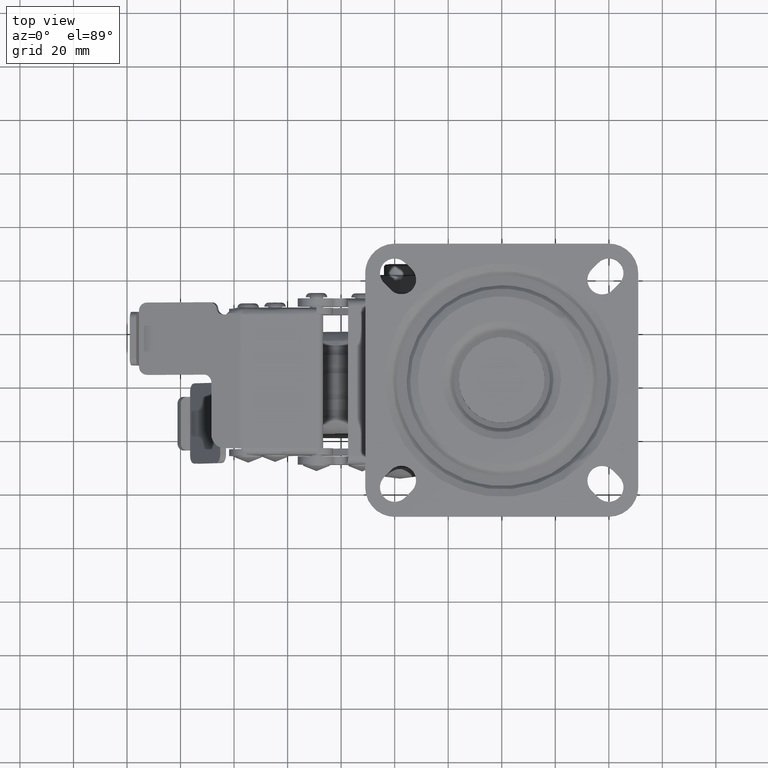
[diagram: clean part render]
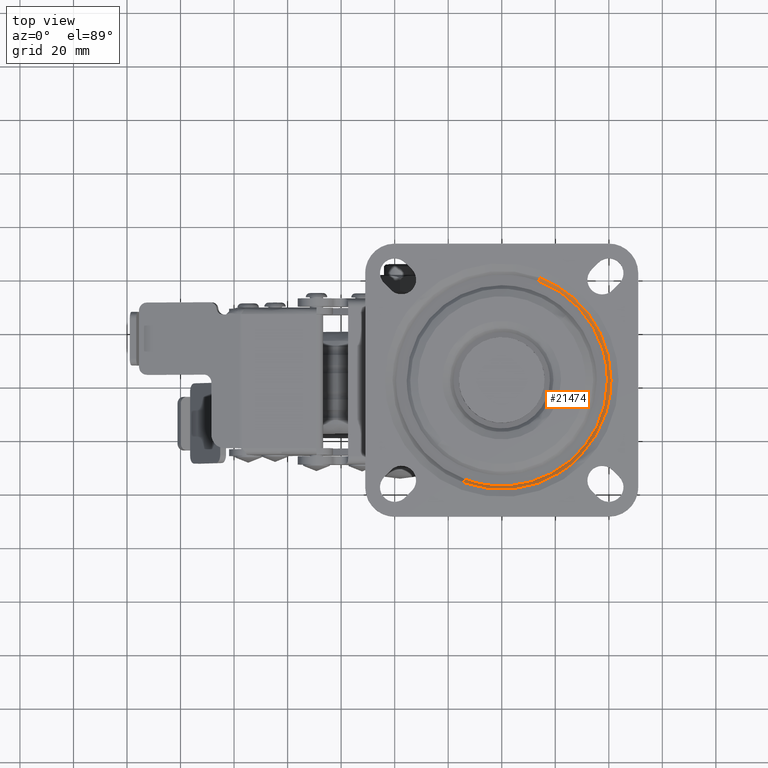
[diagram: same view with one face highlighted and labeled with its STEP entity id]
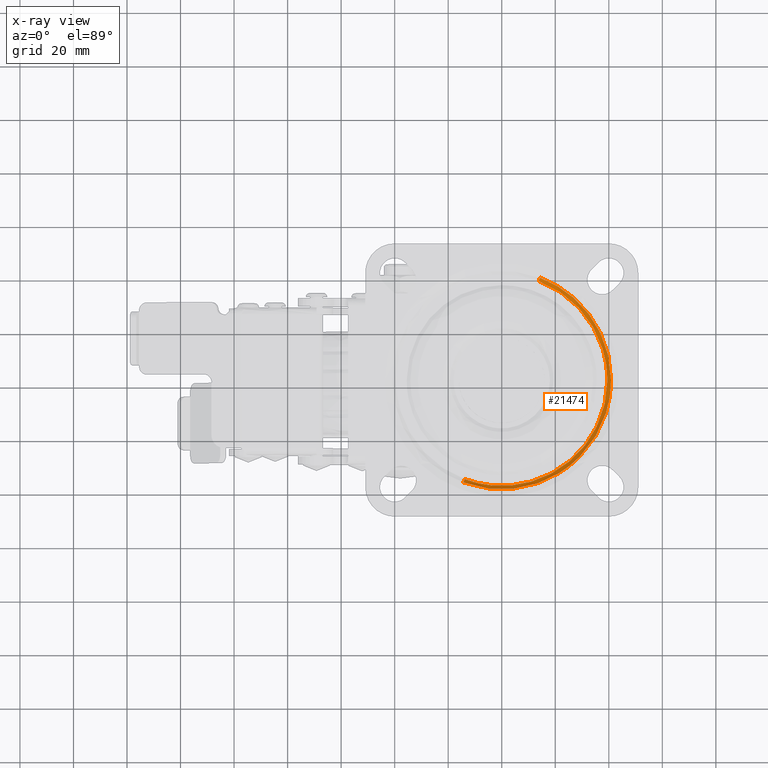
[diagram: x-ray of the same camera — body ghosted, the highlighted face saturated]
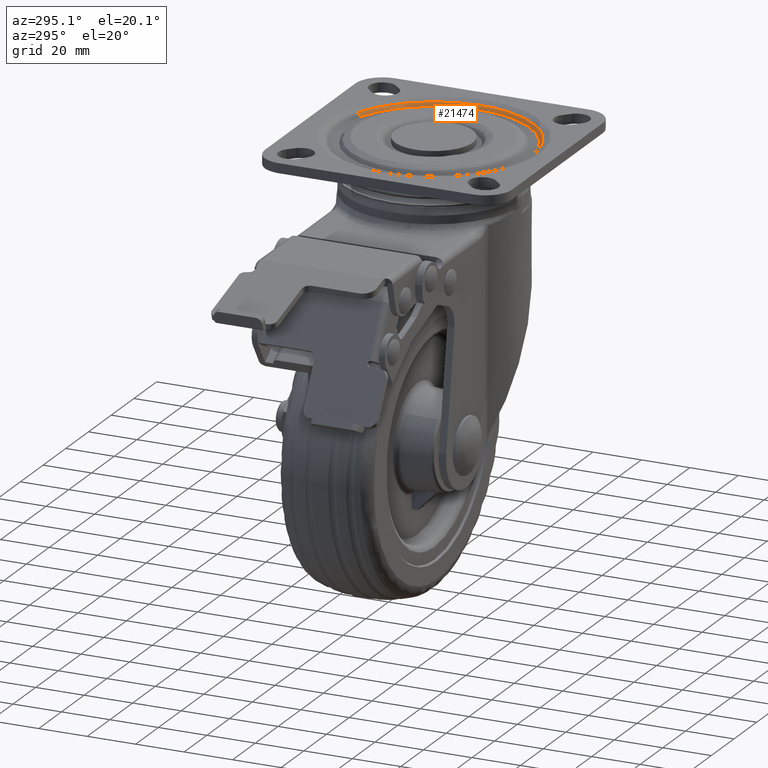
[diagram: same view with one face highlighted and labeled with its STEP entity id]
A machine part, top view. The second image highlights one B-rep face of the part: STEP entity #21474.
The next image is the same camera in x-ray: the body ghosted, the highlighted face saturated — about 0% of this face is hidden behind the body in this view.
A second angle (auxiliary view) of the same face is appended — the face is thin or edge-on in the first view.
In plain terms, the highlighted face is a freeform B-spline surface patch.
Its self-contained STEP definition (entity closure, byte-faithful):
#21090=CARTESIAN_POINT('',(-13.833191559753191,-36.998551475310563,-2.499999999999577));
#21091=VERTEX_POINT('',#21090);
#21107=CARTESIAN_POINT('',(39.500000000000000,0.0,-2.500000000000000));
#21108=VERTEX_POINT('',#21107);
#21109=CARTESIAN_POINT('',(39.500000000000000,0.0,-2.500000000000000));
#21110=CARTESIAN_POINT('',(39.500000000000007,-39.500000000000007,-2.500000000000000));
#21111=CARTESIAN_POINT('',(0.0,-39.500000000000000,-2.500000000000000));
#21112=CARTESIAN_POINT('',(-7.142763569668359,-39.500000000000000,-2.499999999999999));
#21113=CARTESIAN_POINT('',(-13.833191559753047,-36.998551475310180,-2.500000000000000));
#21121=(BOUNDED_CURVE()B_SPLINE_CURVE(2,(#21109,#21110,#21111,#21112,#21113),.UNSPECIFIED.,.F.,.U.)B_SPLINE_CURVE_WITH_KNOTS((3,2,3),(0.500000000000000,0.750000000000000,0.809477856572882),.UNSPECIFIED.)CURVE()GEOMETRIC_REPRESENTATION_ITEM()RATIONAL_B_SPLINE_CURVE((1.0,0.707106781186547,1.0,0.930317356560975,0.893791307298634))REPRESENTATION_ITEM(''));
#21122=EDGE_CURVE('',#21108,#21091,#21121,.T.);
#21124=CARTESIAN_POINT('',(13.833191559753191,36.998551475310563,-2.499999999999577));
#21125=VERTEX_POINT('',#21124);
#21126=CARTESIAN_POINT('',(13.833191559753191,36.998551475310556,-2.499999999999577));
#21127=CARTESIAN_POINT('',(39.500000000000000,27.402125028227346,-2.500000000000000));
#21128=CARTESIAN_POINT('',(39.500000000000000,0.0,-2.500000000000000));
#21136=(BOUNDED_CURVE()B_SPLINE_CURVE(2,(#21126,#21127,#21128),.UNSPECIFIED.,.F.,.U.)B_SPLINE_CURVE_WITH_KNOTS((3,3),(0.309477856572882,0.500000000000000),.UNSPECIFIED.)CURVE()GEOMETRIC_REPRESENTATION_ITEM()RATIONAL_B_SPLINE_CURVE((0.893791307298634,0.776789424625573,1.0))REPRESENTATION_ITEM(''));
#21137=EDGE_CURVE('',#21125,#21108,#21136,.T.);
#21393=CARTESIAN_POINT('',(-13.821560935125730,-36.967443956706589,-2.533210678145635));
#21394=CARTESIAN_POINT('',(23.145883021580872,-50.789004891832320,-2.533210678145636));
#21395=CARTESIAN_POINT('',(36.967443956706589,-13.821560935125730,-2.533210678145635));
#21396=CARTESIAN_POINT('',(50.789004891832320,23.145883021580872,-2.533210678145636));
#21397=CARTESIAN_POINT('',(13.821560935125730,36.967443956706589,-2.533210678145635));
#21398=CARTESIAN_POINT('',(-14.310337934917129,-38.274737426085728,-1.137531929075340));
#21399=CARTESIAN_POINT('',(23.964399491168603,-52.585075361002851,-1.137531929075340));
#21400=CARTESIAN_POINT('',(38.274737426085728,-14.310337934917129,-1.137531929075340));
#21401=CARTESIAN_POINT('',(52.585075361002851,23.964399491168603,-1.137531929075340));
#21402=CARTESIAN_POINT('',(14.310337934917129,38.274737426085728,-1.137531929075340));
#21410=(BOUNDED_SURFACE()B_SPLINE_SURFACE(2,1,((#21393,#21398),(#21394,#21399),(#21395,#21400),(#21396,#21401),(#21397,#21402)),.UNSPECIFIED.,.F.,.F.,.U.)B_SPLINE_SURFACE_WITH_KNOTS((3,2,3),(2,2),(0.0,67.703153868058195,135.406307736116390),(0.0,1.0),.UNSPECIFIED.)GEOMETRIC_REPRESENTATION_ITEM()RATIONAL_B_SPLINE_SURFACE(((1.0,1.0),(0.707106781186548,0.707106781186548),(1.0,1.0),(0.707106781186548,0.707106781186548),(1.0,1.0)))REPRESENTATION_ITEM('')SURFACE());
#21411=CARTESIAN_POINT('',(-14.298416544534380,-38.242852218761954,-1.171572874765941));
#21412=VERTEX_POINT('',#21411);
#21413=CARTESIAN_POINT('',(29.050882544364669,-28.688093086895179,-1.171572874174617));
#21414=VERTEX_POINT('',#21413);
#21415=CARTESIAN_POINT('',(-14.298416544534385,-38.242852218761946,-1.171572874765941));
#21416=CARTESIAN_POINT('',(-7.382982325795014,-40.828427125288734,-1.171572874650710));
#21417=CARTESIAN_POINT('',(5.184212E-010,-40.828427125342891,-1.171572874541723));
#21418=CARTESIAN_POINT('',(17.062157848102018,-40.828427125468053,-1.171572874289856));
#21419=CARTESIAN_POINT('',(29.050882544364669,-28.688093086895176,-1.171572874174617));
#21427=(BOUNDED_CURVE()B_SPLINE_CURVE(2,(#21415,#21416,#21417,#21418,#21419),.UNSPECIFIED.,.F.,.U.)B_SPLINE_CURVE_WITH_KNOTS((3,2,3),(0.381044286849329,0.500000000000000,0.751896125135949),.UNSPECIFIED.)CURVE()GEOMETRIC_REPRESENTATION_ITEM()RATIONAL_B_SPLINE_CURVE((0.893791307295621,0.930317356558101,1.0,0.852442666204592,0.853561814883004))REPRESENTATION_ITEM(''));
#21428=EDGE_CURVE('',#21412,#21414,#21427,.T.);
#21429=ORIENTED_EDGE('',*,*,#21428,.T.);
#21430=CARTESIAN_POINT('',(40.828427124746199,0.0,-1.171572875253816));
#21431=VERTEX_POINT('',#21430);
#21432=CARTESIAN_POINT('',(29.050882544364669,-28.688093086895176,-1.171572874174617));
#21433=CARTESIAN_POINT('',(40.828427125130155,-16.761609745443611,-1.171572874714217));
#21434=CARTESIAN_POINT('',(40.828427124746199,0.0,-1.171572875253816));
#21442=(BOUNDED_CURVE()B_SPLINE_CURVE(2,(#21432,#21433,#21434),.UNSPECIFIED.,.F.,.U.)B_SPLINE_CURVE_WITH_KNOTS((3,3),(0.751896125135949,1.0),.UNSPECIFIED.)CURVE()GEOMETRIC_REPRESENTATION_ITEM()RATIONAL_B_SPLINE_CURVE((0.853561814883004,0.854664114981956,1.0))REPRESENTATION_ITEM(''));
#21443=EDGE_CURVE('',#21414,#21431,#21442,.T.);
#21444=ORIENTED_EDGE('',*,*,#21443,.T.);
#21445=CARTESIAN_POINT('',(14.298416544534380,38.242852218761954,-1.171572874765940));
#21446=VERTEX_POINT('',#21445);
#21447=CARTESIAN_POINT('',(40.828427124746199,0.0,-1.171572875253816));
#21448=CARTESIAN_POINT('',(40.828427124653430,28.323687715585713,-1.171572875135263));
#21449=CARTESIAN_POINT('',(14.298416544534385,38.242852218761946,-1.171572874765940));
#21457=(BOUNDED_CURVE()B_SPLINE_CURVE(2,(#21447,#21448,#21449),.UNSPECIFIED.,.F.,.U.)B_SPLINE_CURVE_WITH_KNOTS((3,3),(0.0,0.381044286849329),.UNSPECIFIED.)CURVE()GEOMETRIC_REPRESENTATION_ITEM()RATIONAL_B_SPLINE_CURVE((1.0,0.776789424628447,0.893791307295621))REPRESENTATION_ITEM(''));
#21458=EDGE_CURVE('',#21431,#21446,#21457,.T.);
#21459=ORIENTED_EDGE('',*,*,#21458,.T.);
#21460=CARTESIAN_POINT('',(13.833191559753191,36.998551475310563,-2.499999999999577));
#21461=CARTESIAN_POINT('',(14.298416544534380,38.242852218761954,-1.171572874765940));
#21462=QUASI_UNIFORM_CURVE('',1,(#21460,#21461),.UNSPECIFIED.,.F.,.U.);
#21463=EDGE_CURVE('',#21125,#21446,#21462,.T.);
#21464=ORIENTED_EDGE('',*,*,#21463,.F.);
#21465=ORIENTED_EDGE('',*,*,#21137,.T.);
#21466=ORIENTED_EDGE('',*,*,#21122,.T.);
#21467=CARTESIAN_POINT('',(-13.833191559753191,-36.998551475310563,-2.499999999999577));
#21468=CARTESIAN_POINT('',(-14.298416544534380,-38.242852218761954,-1.171572874765941));
#21469=QUASI_UNIFORM_CURVE('',1,(#21467,#21468),.UNSPECIFIED.,.F.,.U.);
#21470=EDGE_CURVE('',#21091,#21412,#21469,.T.);
#21471=ORIENTED_EDGE('',*,*,#21470,.T.);
#21472=EDGE_LOOP('',(#21429,#21444,#21459,#21464,#21465,#21466,#21471));
#21473=FACE_OUTER_BOUND('',#21472,.T.);
#21474=ADVANCED_FACE('',(#21473),#21410,.F.);